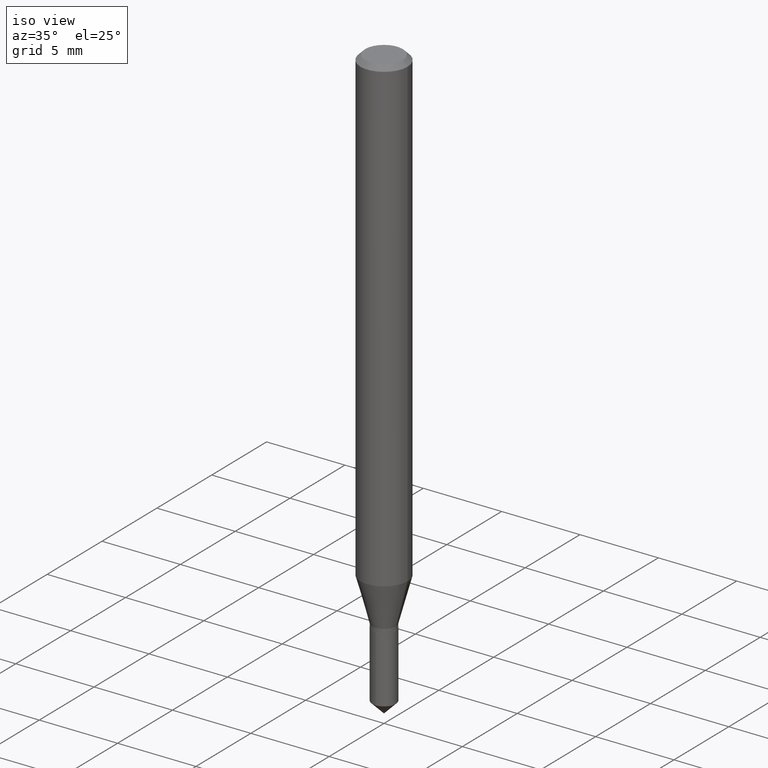
[diagram: clean part render]
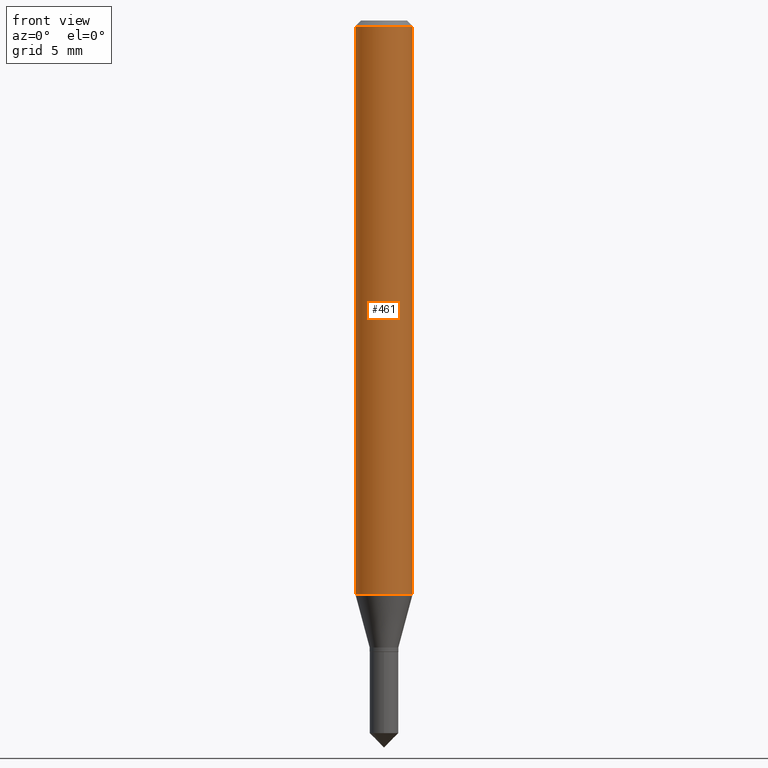
[diagram: tour spotlight — one face highlighted and labeled with its STEP entity id]
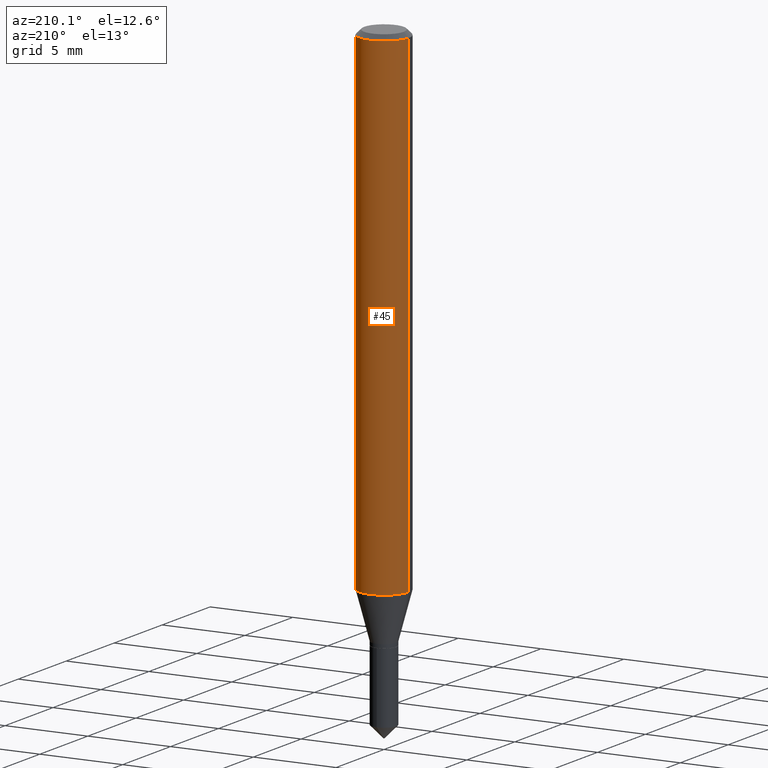
[diagram: tour spotlight — one face highlighted and labeled with its STEP entity id]
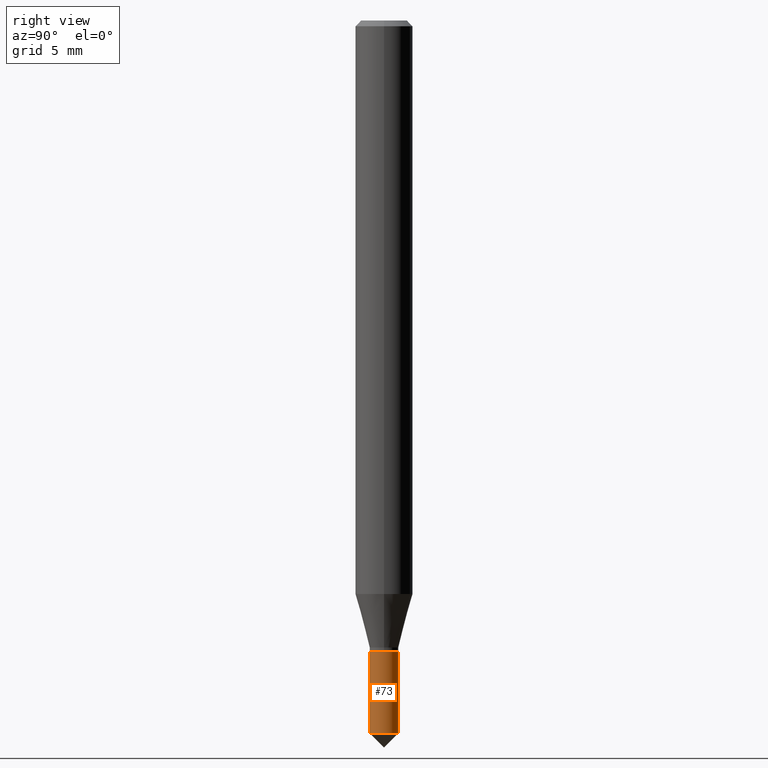
[diagram: tour spotlight — one face highlighted and labeled with its STEP entity id]
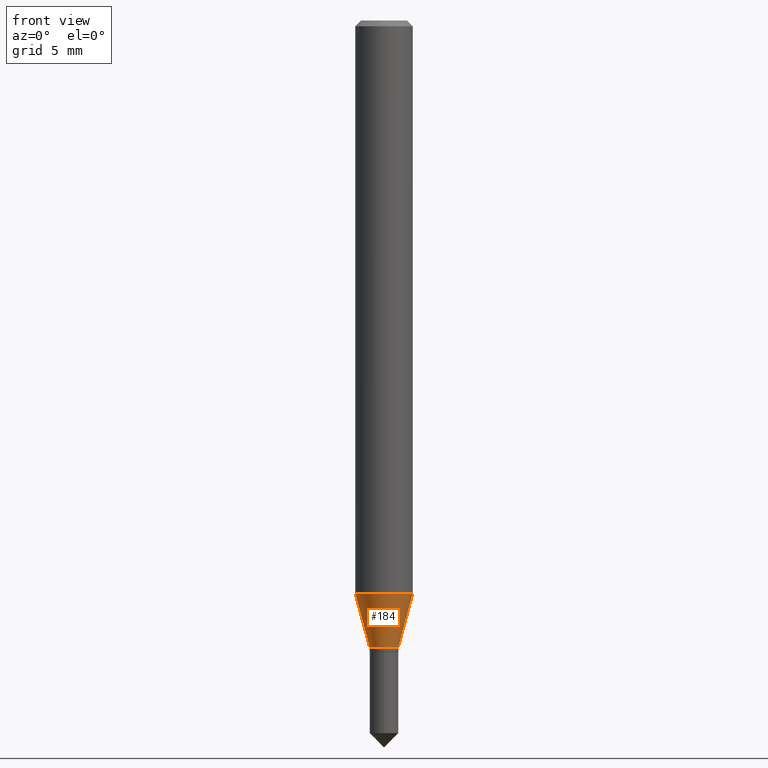
[diagram: tour spotlight — one face highlighted and labeled with its STEP entity id]
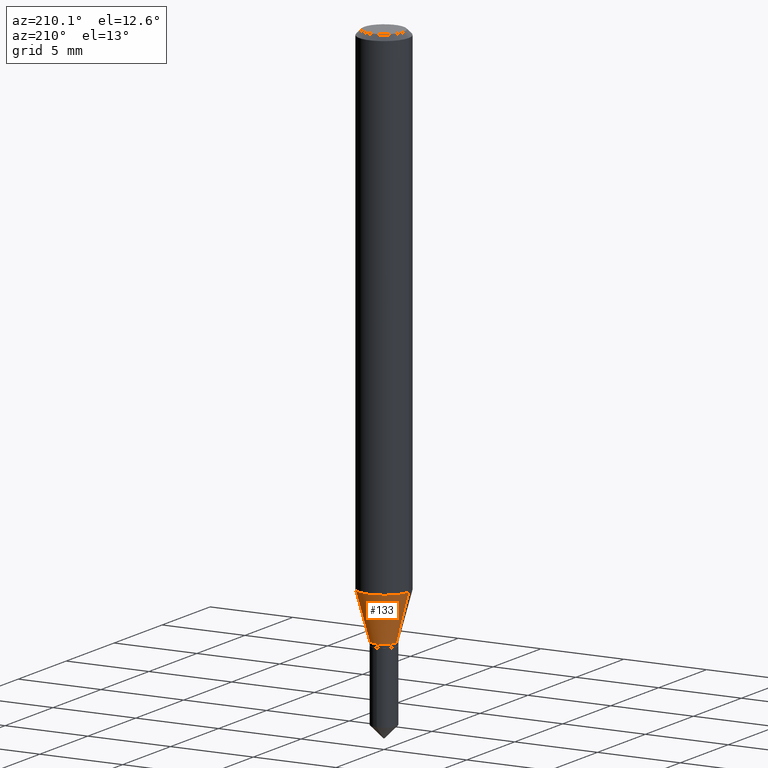
[diagram: tour spotlight — one face highlighted and labeled with its STEP entity id]
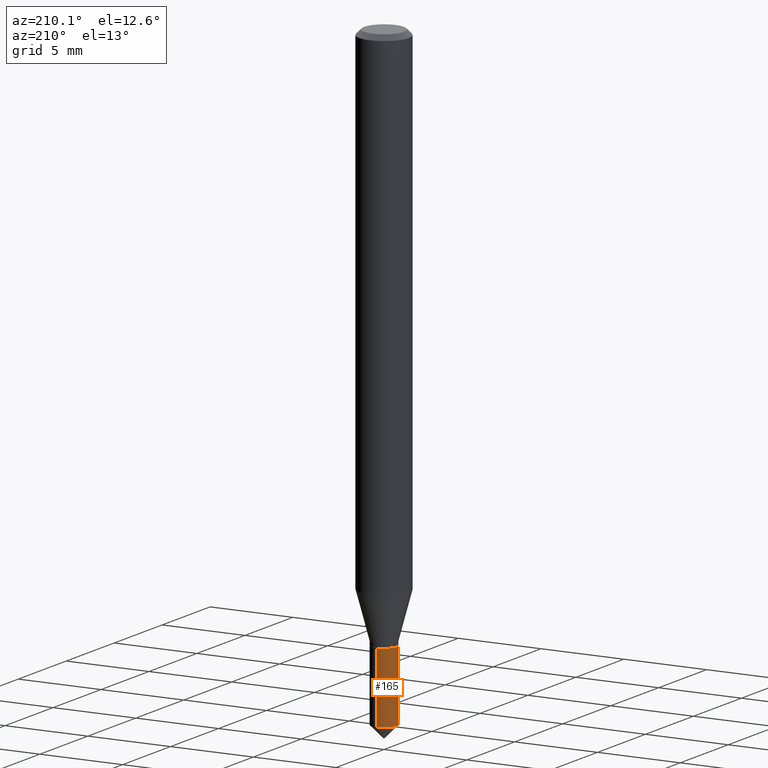
[diagram: tour spotlight — one face highlighted and labeled with its STEP entity id]
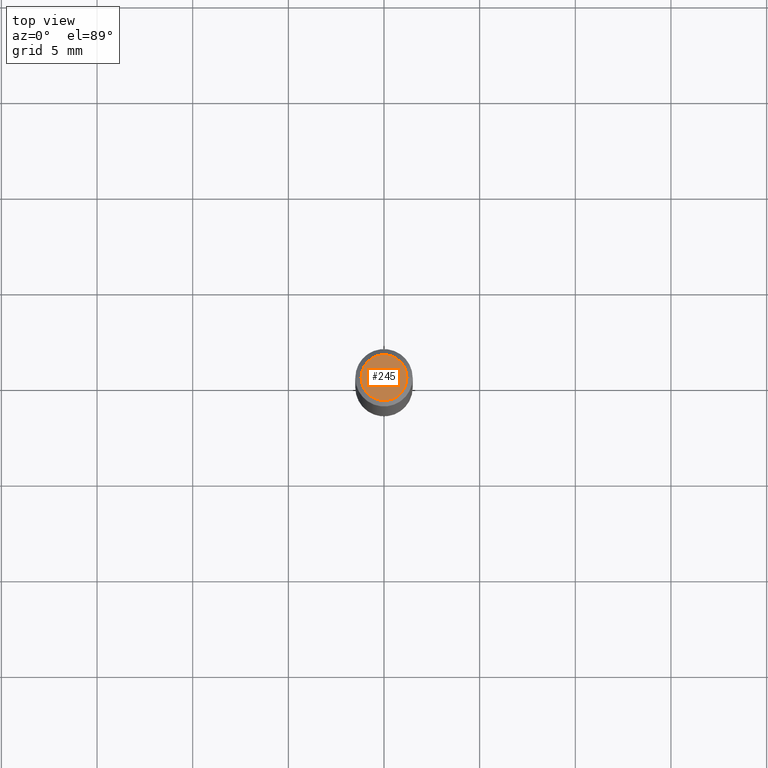
[diagram: tour spotlight — one face highlighted and labeled with its STEP entity id]
A machine part: a face-by-face anatomy tour. The part has 17 B-rep faces; the first image is the clean iso view, then the 7 largest visible faces are spotlighted one at a time (largest first), each with its STEP entity span.

Face 1 — front view, entity #461. In plain terms, the highlighted cylindrical surface (edge-blend (fillet) strip) has radius 1.4999 mm, axis along (-0, 0, 1).
Definition (entity closure, byte-faithful):
#8 = EDGE_CURVE ( 'NONE', #191, #115, #368, .T. ) ;
#19 = EDGE_LOOP ( 'NONE', ( #22, #416, #166, #194 ) ) ;
#22 = ORIENTED_EDGE ( 'NONE', *, *, #364, .F. ) ;
#29 = LINE ( 'NONE', #143, #138 ) ;
#34 = DIRECTION ( 'NONE',  ( 1.000000000000000000, -6.982962677686266711E-15, 4.876176775795936353E-29 ) ) ;
#49 = VERTEX_POINT ( 'NONE', #406 ) ;
#85 = CARTESIAN_POINT ( 'NONE',  ( 2.886153292546952505E-29, -4.120661991877192958E-15, -1.180204501176717713 ) ) ;
#115 = VERTEX_POINT ( 'NONE', #470 ) ;
#132 = CARTESIAN_POINT ( 'NONE',  ( -0.05905000000000014404, -3.701086506410853465E-15, -1.180204501176717713 ) ) ;
#138 = VECTOR ( 'NONE', #256, 39.37007874015748143 ) ;
#143 = CARTESIAN_POINT ( 'NONE',  ( 0.05905000000000006771, -4.123439461173745257E-16, 2.879382386107503723E-30 ) ) ;
#153 = CARTESIAN_POINT ( 'NONE',  ( 2.888098660104664204E-31, -4.123439461173780263E-17, -0.01181000000000007218 ) ) ;
#166 = ORIENTED_EDGE ( 'NONE', *, *, #334, .T. ) ;
#174 = DIRECTION ( 'NONE',  ( 1.000000000000000000, -6.982962677686272233E-15, 0.000000000000000000 ) ) ;
#181 = AXIS2_PLACEMENT_3D ( 'NONE', #85, #312, #174 ) ;
#182 = DIRECTION ( 'NONE',  ( -2.445468806185136877E-29, 3.491481338843145188E-15, 1.000000000000000000 ) ) ;
#183 = CARTESIAN_POINT ( 'NONE',  ( 0.000000000000000000, 0.000000000000000000, 0.000000000000000000 ) ) ;
#191 = VERTEX_POINT ( 'NONE', #132 ) ;
#194 = ORIENTED_EDGE ( 'NONE', *, *, #471, .F. ) ;
#215 = CIRCLE ( 'NONE', #477, 0.05904999999999999832 ) ;
#216 = LINE ( 'NONE', #370, #452 ) ;
#218 = DIRECTION ( 'NONE',  ( 1.000000000000000000, -6.982962677686266711E-15, 0.000000000000000000 ) ) ;
#256 = DIRECTION ( 'NONE',  ( -2.445468806185136877E-29, 3.491481338843145188E-15, 1.000000000000000000 ) ) ;
#274 = VERTEX_POINT ( 'NONE', #402 ) ;
#298 = FACE_OUTER_BOUND ( 'NONE', #19, .T. ) ;
#312 = DIRECTION ( 'NONE',  ( -2.445468806185136597E-29, 3.491481338843145583E-15, 1.000000000000000000 ) ) ;
#334 = EDGE_CURVE ( 'NONE', #115, #274, #29, .T. ) ;
#342 = DIRECTION ( 'NONE',  ( -2.445468806185136597E-29, 3.491481338843145583E-15, 1.000000000000000000 ) ) ;
#364 = EDGE_CURVE ( 'NONE', #191, #49, #216, .T. ) ;
#368 = CIRCLE ( 'NONE', #181, 0.05905000000000014404 ) ;
#370 = CARTESIAN_POINT ( 'NONE',  ( -0.05905000000000006771, 4.195754854663396409E-16, -2.904631170795525045E-30 ) ) ;
#381 = DIRECTION ( 'NONE',  ( -2.445468806185136597E-29, 3.491481338843145583E-15, 1.000000000000000000 ) ) ;
#402 = CARTESIAN_POINT ( 'NONE',  ( 0.05904999999999999832, -4.535783407291118600E-16, -0.01181000000000007218 ) ) ;
#406 = CARTESIAN_POINT ( 'NONE',  ( -0.05904999999999999832, -1.661372707778124864E-15, -0.01181000000000007218 ) ) ;
#416 = ORIENTED_EDGE ( 'NONE', *, *, #8, .T. ) ;
#435 = AXIS2_PLACEMENT_3D ( 'NONE', #183, #342, #34 ) ;
#452 = VECTOR ( 'NONE', #182, 39.37007874015748143 ) ;
#461 = ADVANCED_FACE ( 'NONE', ( #298 ), #488, .T. ) ;
#470 = CARTESIAN_POINT ( 'NONE',  ( 0.05905000000000014404, -4.533005937994568667E-15, -1.180204501176717713 ) ) ;
#471 = EDGE_CURVE ( 'NONE', #49, #274, #215, .T. ) ;
#477 = AXIS2_PLACEMENT_3D ( 'NONE', #153, #381, #218 ) ;
#488 = CYLINDRICAL_SURFACE ( 'NONE', #435, 0.05905000000000006771 ) ;

Face 2 — auxiliary view, entity #45. In plain terms, the highlighted cylindrical surface (edge-blend (fillet) strip) has radius 1.4999 mm, axis along (-0, 0, 1).
Definition (entity closure, byte-faithful):
#26 = DIRECTION ( 'NONE',  ( -2.445468806185136597E-29, 3.491481338843145583E-15, 1.000000000000000000 ) ) ;
#29 = LINE ( 'NONE', #143, #138 ) ;
#31 = CIRCLE ( 'NONE', #454, 0.05904999999999999832 ) ;
#32 = CARTESIAN_POINT ( 'NONE',  ( 2.886153292546952505E-29, -4.120661991877192958E-15, -1.180204501176717713 ) ) ;
#45 = ADVANCED_FACE ( 'NONE', ( #91 ), #243, .T. ) ;
#47 = ORIENTED_EDGE ( 'NONE', *, *, #364, .T. ) ;
#49 = VERTEX_POINT ( 'NONE', #406 ) ;
#57 = CARTESIAN_POINT ( 'NONE',  ( 0.000000000000000000, 0.000000000000000000, 0.000000000000000000 ) ) ;
#63 = EDGE_CURVE ( 'NONE', #274, #49, #31, .T. ) ;
#70 = EDGE_LOOP ( 'NONE', ( #389, #47, #385, #159 ) ) ;
#91 = FACE_OUTER_BOUND ( 'NONE', #70, .T. ) ;
#105 = DIRECTION ( 'NONE',  ( -2.445468806185136597E-29, 3.491481338843145583E-15, 1.000000000000000000 ) ) ;
#115 = VERTEX_POINT ( 'NONE', #470 ) ;
#132 = CARTESIAN_POINT ( 'NONE',  ( -0.05905000000000014404, -3.701086506410853465E-15, -1.180204501176717713 ) ) ;
#138 = VECTOR ( 'NONE', #256, 39.37007874015748143 ) ;
#143 = CARTESIAN_POINT ( 'NONE',  ( 0.05905000000000006771, -4.123439461173745257E-16, 2.879382386107503723E-30 ) ) ;
#159 = ORIENTED_EDGE ( 'NONE', *, *, #334, .F. ) ;
#182 = DIRECTION ( 'NONE',  ( -2.445468806185136877E-29, 3.491481338843145188E-15, 1.000000000000000000 ) ) ;
#191 = VERTEX_POINT ( 'NONE', #132 ) ;
#216 = LINE ( 'NONE', #370, #452 ) ;
#229 = DIRECTION ( 'NONE',  ( -2.445468806185136597E-29, 3.491481338843145583E-15, 1.000000000000000000 ) ) ;
#243 = CYLINDRICAL_SURFACE ( 'NONE', #284, 0.05905000000000006771 ) ;
#255 = DIRECTION ( 'NONE',  ( 1.000000000000000000, -6.982962677686272233E-15, 0.000000000000000000 ) ) ;
#256 = DIRECTION ( 'NONE',  ( -2.445468806185136877E-29, 3.491481338843145188E-15, 1.000000000000000000 ) ) ;
#273 = EDGE_CURVE ( 'NONE', #115, #191, #408, .T. ) ;
#274 = VERTEX_POINT ( 'NONE', #402 ) ;
#284 = AXIS2_PLACEMENT_3D ( 'NONE', #57, #105, #292 ) ;
#292 = DIRECTION ( 'NONE',  ( 1.000000000000000000, -6.982962677686266711E-15, 4.876176775795936353E-29 ) ) ;
#334 = EDGE_CURVE ( 'NONE', #115, #274, #29, .T. ) ;
#355 = AXIS2_PLACEMENT_3D ( 'NONE', #32, #26, #255 ) ;
#364 = EDGE_CURVE ( 'NONE', #191, #49, #216, .T. ) ;
#370 = CARTESIAN_POINT ( 'NONE',  ( -0.05905000000000006771, 4.195754854663396409E-16, -2.904631170795525045E-30 ) ) ;
#385 = ORIENTED_EDGE ( 'NONE', *, *, #63, .F. ) ;
#389 = ORIENTED_EDGE ( 'NONE', *, *, #273, .T. ) ;
#393 = DIRECTION ( 'NONE',  ( 1.000000000000000000, -6.982962677686266711E-15, 0.000000000000000000 ) ) ;
#402 = CARTESIAN_POINT ( 'NONE',  ( 0.05904999999999999832, -4.535783407291118600E-16, -0.01181000000000007218 ) ) ;
#406 = CARTESIAN_POINT ( 'NONE',  ( -0.05904999999999999832, -1.661372707778124864E-15, -0.01181000000000007218 ) ) ;
#408 = CIRCLE ( 'NONE', #355, 0.05905000000000014404 ) ;
#452 = VECTOR ( 'NONE', #182, 39.37007874015748143 ) ;
#454 = AXIS2_PLACEMENT_3D ( 'NONE', #474, #229, #393 ) ;
#470 = CARTESIAN_POINT ( 'NONE',  ( 0.05905000000000014404, -4.533005937994568667E-15, -1.180204501176717713 ) ) ;
#474 = CARTESIAN_POINT ( 'NONE',  ( 2.888098660104664204E-31, -4.123439461173780263E-17, -0.01181000000000007218 ) ) ;

Face 3 — right view, entity #73. In plain terms, the highlighted cylindrical surface (edge-blend (fillet) strip) has radius 0.7506 mm, axis along (-0, 0, 1).
Definition (entity closure, byte-faithful):
#6 = CARTESIAN_POINT ( 'NONE',  ( -2.063465471255932489E-16, -0.02955000000000511384, -1.466550000000000020 ) ) ;
#10 = DIRECTION ( 'NONE',  ( -2.456664372604500601E-29, 3.475448650518548198E-15, 1.000000000000000000 ) ) ;
#18 = AXIS2_PLACEMENT_3D ( 'NONE', #67, #476, #141 ) ;
#23 = AXIS2_PLACEMENT_3D ( 'NONE', #260, #304, #114 ) ;
#25 = AXIS2_PLACEMENT_3D ( 'NONE', #204, #10, #137 ) ;
#67 = CARTESIAN_POINT ( 'NONE',  ( 3.588275855751092435E-29, -5.117748887089293560E-15, -1.466550000000000020 ) ) ;
#73 = ADVANCED_FACE ( 'NONE', ( #280 ), #396, .T. ) ;
#93 = CARTESIAN_POINT ( 'NONE',  ( -2.063465471255973904E-16, -0.02955000000000453791, -1.299199999999999910 ) ) ;
#99 = CARTESIAN_POINT ( 'NONE',  ( -2.063465471255973657E-16, -0.02955000000000453445, -1.299199999999999910 ) ) ;
#114 = DIRECTION ( 'NONE',  ( -6.982962677686265922E-15, -1.000000000000000000, 0.000000000000000000 ) ) ;
#122 = ORIENTED_EDGE ( 'NONE', *, *, #356, .T. ) ;
#137 = DIRECTION ( 'NONE',  ( -6.982962677686265922E-15, -1.000000000000000000, 0.000000000000000000 ) ) ;
#141 = DIRECTION ( 'NONE',  ( -6.982962677686265922E-15, -1.000000000000000000, 0.000000000000000000 ) ) ;
#160 = CARTESIAN_POINT ( 'NONE',  ( 2.099653784171454233E-16, 0.02954999999999487897, -1.466550000000000020 ) ) ;
#168 = ORIENTED_EDGE ( 'NONE', *, *, #348, .T. ) ;
#170 = VERTEX_POINT ( 'NONE', #93 ) ;
#204 = CARTESIAN_POINT ( 'NONE',  ( 3.177153072995728757E-29, -4.536132555425014733E-15, -1.299199999999999910 ) ) ;
#222 = VERTEX_POINT ( 'NONE', #6 ) ;
#227 = VERTEX_POINT ( 'NONE', #160 ) ;
#231 = ORIENTED_EDGE ( 'NONE', *, *, #440, .F. ) ;
#238 = ORIENTED_EDGE ( 'NONE', *, *, #253, .F. ) ;
#253 = EDGE_CURVE ( 'NONE', #222, #170, #325, .T. ) ;
#260 = CARTESIAN_POINT ( 'NONE',  ( 3.177153072995728757E-29, -4.536132555425014733E-15, -1.299199999999999910 ) ) ;
#270 = CIRCLE ( 'NONE', #18, 0.02954999999999999641 ) ;
#280 = FACE_OUTER_BOUND ( 'NONE', #400, .T. ) ;
#293 = CARTESIAN_POINT ( 'NONE',  ( 2.099653784171413311E-16, 0.02954999999999545837, -1.299199999999999910 ) ) ;
#304 = DIRECTION ( 'NONE',  ( -2.456664372604500601E-29, 3.475448650518548198E-15, 1.000000000000000000 ) ) ;
#314 = CIRCLE ( 'NONE', #23, 0.02954999999999999988 ) ;
#325 = LINE ( 'NONE', #99, #417 ) ;
#329 = LINE ( 'NONE', #293, #332 ) ;
#332 = VECTOR ( 'NONE', #411, 39.37007874015748143 ) ;
#348 = EDGE_CURVE ( 'NONE', #227, #382, #329, .T. ) ;
#356 = EDGE_CURVE ( 'NONE', #222, #227, #270, .T. ) ;
#382 = VERTEX_POINT ( 'NONE', #401 ) ;
#396 = CYLINDRICAL_SURFACE ( 'NONE', #25, 0.02954999999999999641 ) ;
#400 = EDGE_LOOP ( 'NONE', ( #122, #168, #231, #238 ) ) ;
#401 = CARTESIAN_POINT ( 'NONE',  ( 2.099653784171454479E-16, 0.02954999999999546184, -1.299199999999999910 ) ) ;
#411 = DIRECTION ( 'NONE',  ( -2.456664372604500881E-29, 3.475448650518548198E-15, 1.000000000000000000 ) ) ;
#417 = VECTOR ( 'NONE', #447, 39.37007874015748143 ) ;
#440 = EDGE_CURVE ( 'NONE', #170, #382, #314, .T. ) ;
#447 = DIRECTION ( 'NONE',  ( -2.456664372604500881E-29, 3.475448650518548198E-15, 1.000000000000000000 ) ) ;
#476 = DIRECTION ( 'NONE',  ( -2.456664372604500601E-29, 3.475448650518548198E-15, 1.000000000000000000 ) ) ;

Face 4 — front view, entity #184. In plain terms, the highlighted conical surface has half-angle 15 deg.
Definition (entity closure, byte-faithful):
#8 = EDGE_CURVE ( 'NONE', #191, #115, #368, .T. ) ;
#11 = VECTOR ( 'NONE', #177, 39.37007874015747433 ) ;
#21 = EDGE_CURVE ( 'NONE', #426, #285, #155, .T. ) ;
#60 = CARTESIAN_POINT ( 'NONE',  ( 0.02954999999999998253, -4.711404918634939214E-15, -1.290300000000000002 ) ) ;
#62 = CARTESIAN_POINT ( 'NONE',  ( -0.02954999999999998253, -4.295092993092201035E-15, -1.290300000000000002 ) ) ;
#85 = CARTESIAN_POINT ( 'NONE',  ( 2.886153292546952505E-29, -4.120661991877192958E-15, -1.180204501176717713 ) ) ;
#94 = DIRECTION ( 'NONE',  ( -2.445468806185136597E-29, 3.491481338843145583E-15, 1.000000000000000000 ) ) ;
#95 = DIRECTION ( 'NONE',  ( 1.000000000000000000, -6.982962677686265922E-15, 0.000000000000000000 ) ) ;
#115 = VERTEX_POINT ( 'NONE', #470 ) ;
#132 = CARTESIAN_POINT ( 'NONE',  ( -0.05905000000000014404, -3.701086506410853465E-15, -1.180204501176717713 ) ) ;
#155 = CIRCLE ( 'NONE', #376, 0.02954999999999998253 ) ;
#174 = DIRECTION ( 'NONE',  ( 1.000000000000000000, -6.982962677686272233E-15, 0.000000000000000000 ) ) ;
#177 = DIRECTION ( 'NONE',  ( -0.2588190451025214611, 5.211531920934551042E-15, 0.9659258262890682012 ) ) ;
#180 = DIRECTION ( 'NONE',  ( 0.2588190451025214611, 1.565188264969621573E-15, 0.9659258262890682012 ) ) ;
#181 = AXIS2_PLACEMENT_3D ( 'NONE', #85, #312, #174 ) ;
#184 = ADVANCED_FACE ( 'NONE', ( #398 ), #202, .T. ) ;
#191 = VERTEX_POINT ( 'NONE', #132 ) ;
#202 = CONICAL_SURFACE ( 'NONE', #443, 0.02954999999999998253, 0.2617993877991501295 ) ;
#205 = EDGE_LOOP ( 'NONE', ( #456, #421, #352, #467 ) ) ;
#206 = CARTESIAN_POINT ( 'NONE',  ( 3.155388400620681599E-29, -4.505058371509310392E-15, -1.290300000000000002 ) ) ;
#248 = LINE ( 'NONE', #62, #11 ) ;
#259 = EDGE_CURVE ( 'NONE', #285, #115, #331, .T. ) ;
#285 = VERTEX_POINT ( 'NONE', #365 ) ;
#312 = DIRECTION ( 'NONE',  ( -2.445468806185136597E-29, 3.491481338843145583E-15, 1.000000000000000000 ) ) ;
#331 = LINE ( 'NONE', #60, #478 ) ;
#352 = ORIENTED_EDGE ( 'NONE', *, *, #259, .T. ) ;
#360 = DIRECTION ( 'NONE',  ( -2.445468806185136597E-29, 3.491481338843145583E-15, 1.000000000000000000 ) ) ;
#365 = CARTESIAN_POINT ( 'NONE',  ( 0.02954999999999998253, -4.711404918634939214E-15, -1.290300000000000002 ) ) ;
#368 = CIRCLE ( 'NONE', #181, 0.05905000000000014404 ) ;
#376 = AXIS2_PLACEMENT_3D ( 'NONE', #395, #94, #433 ) ;
#395 = CARTESIAN_POINT ( 'NONE',  ( 3.155388400620681599E-29, -4.505058371509310392E-15, -1.290300000000000002 ) ) ;
#398 = FACE_OUTER_BOUND ( 'NONE', #205, .T. ) ;
#421 = ORIENTED_EDGE ( 'NONE', *, *, #21, .T. ) ;
#422 = EDGE_CURVE ( 'NONE', #426, #191, #248, .T. ) ;
#426 = VERTEX_POINT ( 'NONE', #473 ) ;
#433 = DIRECTION ( 'NONE',  ( 1.000000000000000000, -6.982962677686265922E-15, 0.000000000000000000 ) ) ;
#443 = AXIS2_PLACEMENT_3D ( 'NONE', #206, #360, #95 ) ;
#456 = ORIENTED_EDGE ( 'NONE', *, *, #422, .F. ) ;
#467 = ORIENTED_EDGE ( 'NONE', *, *, #8, .F. ) ;
#470 = CARTESIAN_POINT ( 'NONE',  ( 0.05905000000000014404, -4.533005937994568667E-15, -1.180204501176717713 ) ) ;
#473 = CARTESIAN_POINT ( 'NONE',  ( -0.02954999999999998253, -4.309757214715342453E-15, -1.290300000000000002 ) ) ;
#478 = VECTOR ( 'NONE', #180, 39.37007874015747433 ) ;

Face 5 — auxiliary view, entity #133. In plain terms, the highlighted conical surface has half-angle 15 deg.
Definition (entity closure, byte-faithful):
#1 = AXIS2_PLACEMENT_3D ( 'NONE', #48, #167, #169 ) ;
#11 = VECTOR ( 'NONE', #177, 39.37007874015747433 ) ;
#15 = DIRECTION ( 'NONE',  ( -2.445468806185136597E-29, 3.491481338843145583E-15, 1.000000000000000000 ) ) ;
#26 = DIRECTION ( 'NONE',  ( -2.445468806185136597E-29, 3.491481338843145583E-15, 1.000000000000000000 ) ) ;
#32 = CARTESIAN_POINT ( 'NONE',  ( 2.886153292546952505E-29, -4.120661991877192958E-15, -1.180204501176717713 ) ) ;
#36 = AXIS2_PLACEMENT_3D ( 'NONE', #432, #15, #86 ) ;
#48 = CARTESIAN_POINT ( 'NONE',  ( 3.155388400620681599E-29, -4.505058371509310392E-15, -1.290300000000000002 ) ) ;
#60 = CARTESIAN_POINT ( 'NONE',  ( 0.02954999999999998253, -4.711404918634939214E-15, -1.290300000000000002 ) ) ;
#62 = CARTESIAN_POINT ( 'NONE',  ( -0.02954999999999998253, -4.295092993092201035E-15, -1.290300000000000002 ) ) ;
#86 = DIRECTION ( 'NONE',  ( 1.000000000000000000, -6.982962677686265922E-15, 0.000000000000000000 ) ) ;
#89 = EDGE_CURVE ( 'NONE', #285, #426, #482, .T. ) ;
#115 = VERTEX_POINT ( 'NONE', #470 ) ;
#132 = CARTESIAN_POINT ( 'NONE',  ( -0.05905000000000014404, -3.701086506410853465E-15, -1.180204501176717713 ) ) ;
#133 = ADVANCED_FACE ( 'NONE', ( #434 ), #463, .T. ) ;
#162 = ORIENTED_EDGE ( 'NONE', *, *, #89, .T. ) ;
#167 = DIRECTION ( 'NONE',  ( -2.445468806185136597E-29, 3.491481338843145583E-15, 1.000000000000000000 ) ) ;
#169 = DIRECTION ( 'NONE',  ( 1.000000000000000000, -6.982962677686265922E-15, 0.000000000000000000 ) ) ;
#177 = DIRECTION ( 'NONE',  ( -0.2588190451025214611, 5.211531920934551042E-15, 0.9659258262890682012 ) ) ;
#180 = DIRECTION ( 'NONE',  ( 0.2588190451025214611, 1.565188264969621573E-15, 0.9659258262890682012 ) ) ;
#191 = VERTEX_POINT ( 'NONE', #132 ) ;
#248 = LINE ( 'NONE', #62, #11 ) ;
#255 = DIRECTION ( 'NONE',  ( 1.000000000000000000, -6.982962677686272233E-15, 0.000000000000000000 ) ) ;
#259 = EDGE_CURVE ( 'NONE', #285, #115, #331, .T. ) ;
#273 = EDGE_CURVE ( 'NONE', #115, #191, #408, .T. ) ;
#285 = VERTEX_POINT ( 'NONE', #365 ) ;
#331 = LINE ( 'NONE', #60, #478 ) ;
#338 = ORIENTED_EDGE ( 'NONE', *, *, #422, .T. ) ;
#350 = ORIENTED_EDGE ( 'NONE', *, *, #259, .F. ) ;
#355 = AXIS2_PLACEMENT_3D ( 'NONE', #32, #26, #255 ) ;
#361 = EDGE_LOOP ( 'NONE', ( #162, #338, #469, #350 ) ) ;
#365 = CARTESIAN_POINT ( 'NONE',  ( 0.02954999999999998253, -4.711404918634939214E-15, -1.290300000000000002 ) ) ;
#408 = CIRCLE ( 'NONE', #355, 0.05905000000000014404 ) ;
#422 = EDGE_CURVE ( 'NONE', #426, #191, #248, .T. ) ;
#426 = VERTEX_POINT ( 'NONE', #473 ) ;
#432 = CARTESIAN_POINT ( 'NONE',  ( 3.155388400620681599E-29, -4.505058371509310392E-15, -1.290300000000000002 ) ) ;
#434 = FACE_OUTER_BOUND ( 'NONE', #361, .T. ) ;
#463 = CONICAL_SURFACE ( 'NONE', #1, 0.02954999999999998253, 0.2617993877991501295 ) ;
#469 = ORIENTED_EDGE ( 'NONE', *, *, #273, .F. ) ;
#470 = CARTESIAN_POINT ( 'NONE',  ( 0.05905000000000014404, -4.533005937994568667E-15, -1.180204501176717713 ) ) ;
#473 = CARTESIAN_POINT ( 'NONE',  ( -0.02954999999999998253, -4.309757214715342453E-15, -1.290300000000000002 ) ) ;
#478 = VECTOR ( 'NONE', #180, 39.37007874015747433 ) ;
#482 = CIRCLE ( 'NONE', #36, 0.02954999999999998253 ) ;

Face 6 — auxiliary view, entity #165. In plain terms, the highlighted cylindrical surface (edge-blend (fillet) strip) has radius 0.7506 mm, axis along (-0, 0, 1).
Definition (entity closure, byte-faithful):
#6 = CARTESIAN_POINT ( 'NONE',  ( -2.063465471255932489E-16, -0.02955000000000511384, -1.466550000000000020 ) ) ;
#16 = ORIENTED_EDGE ( 'NONE', *, *, #302, .F. ) ;
#81 = AXIS2_PLACEMENT_3D ( 'NONE', #351, #239, #135 ) ;
#93 = CARTESIAN_POINT ( 'NONE',  ( -2.063465471255973904E-16, -0.02955000000000453791, -1.299199999999999910 ) ) ;
#99 = CARTESIAN_POINT ( 'NONE',  ( -2.063465471255973657E-16, -0.02955000000000453445, -1.299199999999999910 ) ) ;
#135 = DIRECTION ( 'NONE',  ( -6.982962677686265922E-15, -1.000000000000000000, 0.000000000000000000 ) ) ;
#136 = ORIENTED_EDGE ( 'NONE', *, *, #348, .F. ) ;
#160 = CARTESIAN_POINT ( 'NONE',  ( 2.099653784171454233E-16, 0.02954999999999487897, -1.466550000000000020 ) ) ;
#164 = CIRCLE ( 'NONE', #224, 0.02954999999999999641 ) ;
#165 = ADVANCED_FACE ( 'NONE', ( #198 ), #439, .T. ) ;
#170 = VERTEX_POINT ( 'NONE', #93 ) ;
#195 = CARTESIAN_POINT ( 'NONE',  ( 3.588275855751092435E-29, -5.117748887089293560E-15, -1.466550000000000020 ) ) ;
#197 = EDGE_LOOP ( 'NONE', ( #136, #465, #279, #16 ) ) ;
#198 = FACE_OUTER_BOUND ( 'NONE', #197, .T. ) ;
#213 = EDGE_CURVE ( 'NONE', #227, #222, #164, .T. ) ;
#222 = VERTEX_POINT ( 'NONE', #6 ) ;
#224 = AXIS2_PLACEMENT_3D ( 'NONE', #195, #346, #464 ) ;
#227 = VERTEX_POINT ( 'NONE', #160 ) ;
#239 = DIRECTION ( 'NONE',  ( -2.456664372604500601E-29, 3.475448650518548198E-15, 1.000000000000000000 ) ) ;
#251 = DIRECTION ( 'NONE',  ( -2.456664372604500601E-29, 3.475448650518548198E-15, 1.000000000000000000 ) ) ;
#253 = EDGE_CURVE ( 'NONE', #222, #170, #325, .T. ) ;
#279 = ORIENTED_EDGE ( 'NONE', *, *, #253, .T. ) ;
#293 = CARTESIAN_POINT ( 'NONE',  ( 2.099653784171413311E-16, 0.02954999999999545837, -1.299199999999999910 ) ) ;
#302 = EDGE_CURVE ( 'NONE', #382, #170, #316, .T. ) ;
#316 = CIRCLE ( 'NONE', #437, 0.02954999999999999988 ) ;
#325 = LINE ( 'NONE', #99, #417 ) ;
#329 = LINE ( 'NONE', #293, #332 ) ;
#332 = VECTOR ( 'NONE', #411, 39.37007874015748143 ) ;
#346 = DIRECTION ( 'NONE',  ( -2.456664372604500601E-29, 3.475448650518548198E-15, 1.000000000000000000 ) ) ;
#348 = EDGE_CURVE ( 'NONE', #227, #382, #329, .T. ) ;
#351 = CARTESIAN_POINT ( 'NONE',  ( 3.177153072995728757E-29, -4.536132555425014733E-15, -1.299199999999999910 ) ) ;
#382 = VERTEX_POINT ( 'NONE', #401 ) ;
#401 = CARTESIAN_POINT ( 'NONE',  ( 2.099653784171454479E-16, 0.02954999999999546184, -1.299199999999999910 ) ) ;
#407 = DIRECTION ( 'NONE',  ( -6.982962677686265922E-15, -1.000000000000000000, 0.000000000000000000 ) ) ;
#411 = DIRECTION ( 'NONE',  ( -2.456664372604500881E-29, 3.475448650518548198E-15, 1.000000000000000000 ) ) ;
#417 = VECTOR ( 'NONE', #447, 39.37007874015748143 ) ;
#437 = AXIS2_PLACEMENT_3D ( 'NONE', #442, #251, #407 ) ;
#439 = CYLINDRICAL_SURFACE ( 'NONE', #81, 0.02954999999999999641 ) ;
#442 = CARTESIAN_POINT ( 'NONE',  ( 3.177153072995728757E-29, -4.536132555425014733E-15, -1.299199999999999910 ) ) ;
#447 = DIRECTION ( 'NONE',  ( -2.456664372604500881E-29, 3.475448650518548198E-15, 1.000000000000000000 ) ) ;
#464 = DIRECTION ( 'NONE',  ( -6.982962677686265922E-15, -1.000000000000000000, 0.000000000000000000 ) ) ;
#465 = ORIENTED_EDGE ( 'NONE', *, *, #213, .T. ) ;

Face 7 — top view, entity #245. In plain terms, the highlighted planar face has unit normal (0, -0, -1).
Definition (entity closure, byte-faithful):
#28 = CARTESIAN_POINT ( 'NONE',  ( 8.265746106709734507E-48, -1.180129479067563789E-33, -3.380025165646692144E-19 ) ) ;
#130 = FACE_OUTER_BOUND ( 'NONE', #236, .T. ) ;
#140 = DIRECTION ( 'NONE',  ( 1.000000000000000000, -6.982962677686266711E-15, 4.876185090822587894E-29 ) ) ;
#142 = AXIS2_PLACEMENT_3D ( 'NONE', #366, #480, #210 ) ;
#151 = VERTEX_POINT ( 'NONE', #201 ) ;
#178 = CARTESIAN_POINT ( 'NONE',  ( -0.04724000000000000421, 3.504923541997677355E-16, -3.380025165670481712E-19 ) ) ;
#179 = EDGE_CURVE ( 'NONE', #336, #151, #250, .T. ) ;
#201 = CARTESIAN_POINT ( 'NONE',  ( 0.04724000000000000421, -3.852183633974369345E-16, -3.380025165621689721E-19 ) ) ;
#210 = DIRECTION ( 'NONE',  ( -1.000000000000000000, 6.982962677686265922E-15, -4.876176775795935793E-29 ) ) ;
#236 = EDGE_LOOP ( 'NONE', ( #317, #319 ) ) ;
#245 = ADVANCED_FACE ( 'NONE', ( #130 ), #278, .F. ) ;
#250 = CIRCLE ( 'NONE', #315, 0.04724000000000000421 ) ;
#252 = CIRCLE ( 'NONE', #485, 0.04724000000000000421 ) ;
#266 = EDGE_CURVE ( 'NONE', #151, #336, #252, .T. ) ;
#278 = PLANE ( 'NONE',  #142 ) ;
#310 = DIRECTION ( 'NONE',  ( 1.000000000000000000, -6.982962677686266711E-15, 4.876185090822587894E-29 ) ) ;
#313 = CARTESIAN_POINT ( 'NONE',  ( 8.265746106709734507E-48, -1.180129479067563789E-33, -3.380025165646692144E-19 ) ) ;
#315 = AXIS2_PLACEMENT_3D ( 'NONE', #313, #466, #310 ) ;
#317 = ORIENTED_EDGE ( 'NONE', *, *, #179, .T. ) ;
#319 = ORIENTED_EDGE ( 'NONE', *, *, #266, .T. ) ;
#336 = VERTEX_POINT ( 'NONE', #178 ) ;
#366 = CARTESIAN_POINT ( 'NONE',  ( 4.132873053354867254E-48, -5.900647395337818946E-34, -1.690012582823346072E-19 ) ) ;
#367 = DIRECTION ( 'NONE',  ( -2.445468806185136597E-29, 3.491481338843145583E-15, 1.000000000000000000 ) ) ;
#466 = DIRECTION ( 'NONE',  ( -2.445468806185136597E-29, 3.491481338843145583E-15, 1.000000000000000000 ) ) ;
#480 = DIRECTION ( 'NONE',  ( 2.438088387897960049E-29, -3.491481338843145188E-15, -1.000000000000000000 ) ) ;
#485 = AXIS2_PLACEMENT_3D ( 'NONE', #28, #367, #140 ) ;